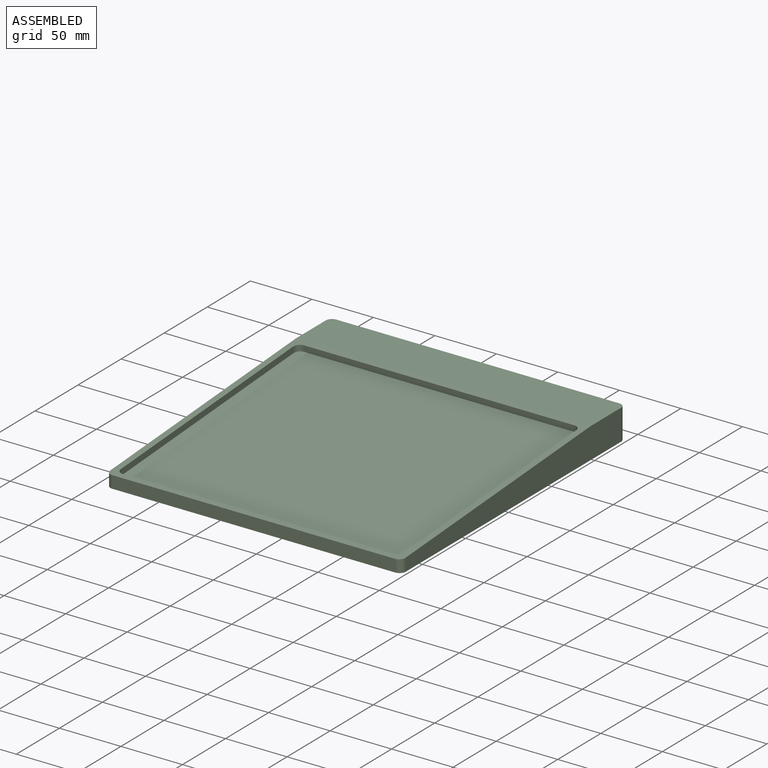
[diagram: assembled view]
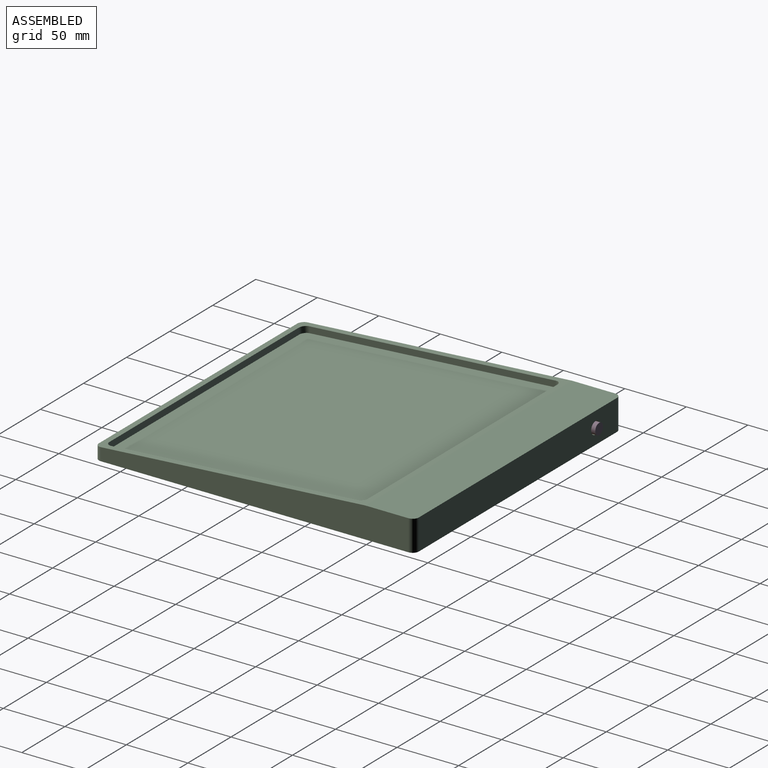
[diagram: assembled view, second angle]
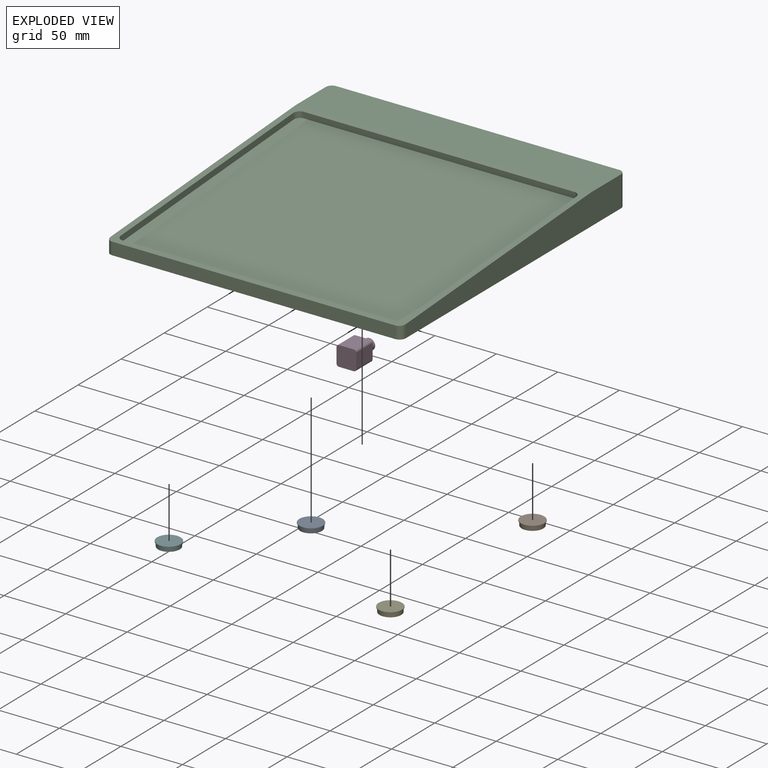
[diagram: exploded view]
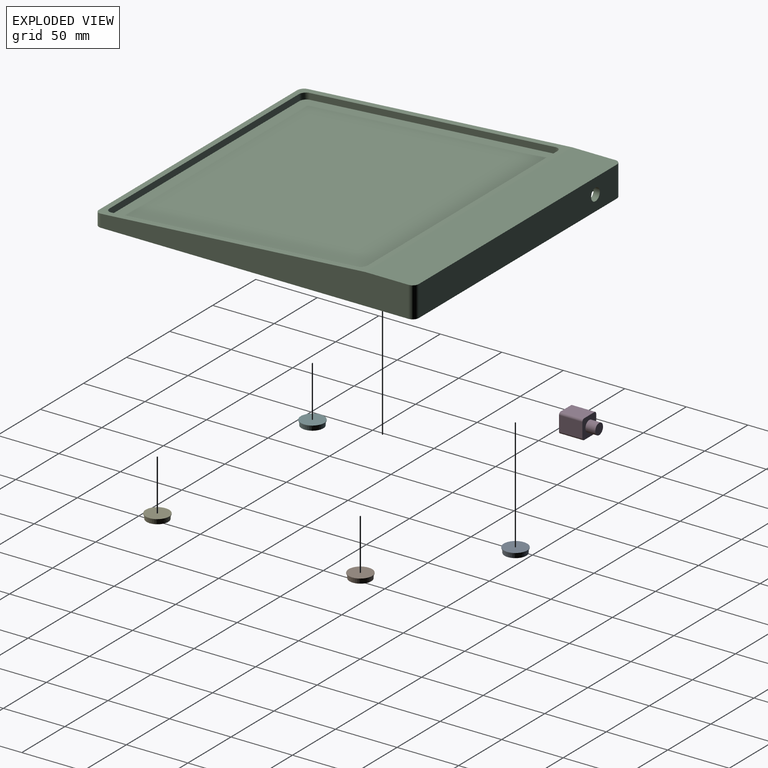
[diagram: exploded view, second angle]
ASSEMBLY  parts=6 mates=5
PART A: 5 faces, bbox 19x19x4.1 mm
  f0: cylinder r=9.5mm len=19mm, axis (0,0,-1), area 29.8mm2, adj f1,f2
  f1: plane 19x19mm, normal (0,0,1), area 30.5mm2, adj f0,f3
  f2: plane 19x19mm, normal (0,0,-1), area 283.5mm2, adj f0
  f3: cone r=9mm half-angle=3deg, axis (0,0,-1), area 201.1mm2, adj f1,f4
  f4: plane 17.57x17.57mm, normal (0,0,1), area 242.5mm2, adj f3
PART B: same geometry as A
PART C: 49 faces, bbox 240x260x25 mm
  f0: plane 52.5x30mm, normal (0,0,-1), area 1575mm2, adj f1,f2,f23,f31
  f1: plane 52.5x20mm, normal (0,-1,0), area 1050mm2, adj f0,f9,f23,f31
  f2: plane 52.5x20mm, normal (0,1,0), area 1050mm2, adj f0,f9,f23,f31
  f3: plane 55x30mm, normal (0,0,-1), area 1650mm2, adj f4,f5,f26,f29
  f4: plane 55x20mm, normal (0,-1,0), area 1100mm2, adj f3,f9,f26,f29
  f5: plane 55x20mm, normal (0,1,0), area 1100mm2, adj f3,f9,f26,f29
  f6: plane 55x30mm, normal (0,0,-1), area 1650mm2, adj f7,f8,f27,f30
  f7: plane 55x20mm, normal (0,-1,0), area 1100mm2, adj f6,f9,f27,f30
  f8: plane 55x20mm, normal (0,1,0), area 1100mm2, adj f6,f9,f27,f30
  f9: plane 260x240mm, normal (0,0,-1), area 54671.9mm2, adj f1,f2,f4,f5,f7,f8,f10,f11
  f10: plane 250x25mm, normal (-1,0,0), area 4674.1mm2, adj f9,f12,f15,f32,f33
  f11: plane 230x10mm, normal (0,-1,0), area 2300mm2, adj f9,f15,f33,f34
  f12: plane 240x40mm, normal (0,0,1), area 9589.3mm2, adj f10,f13,f14,f15,f32,f35
  f13: plane 230x25mm, normal (0,1,0), area 5671.5mm2, adj f9,f12,f32,f35,f48
  f14: plane 250x25mm, normal (1,0,0), area 4674.1mm2, adj f9,f12,f15,f34,f35
  f15: plane 240x220mm, normal (0,-0.07,1), area 4515.8mm2, adj f10,f11,f12,f14,f16,f17,f18,f19
  f16: plane 220x4.99mm, normal (0,-1,-0.07), area 1100mm2, adj f15,f20,f36,f39
  f17: plane 200.39x18.63mm, normal (1,0,0), area 1002.6mm2, adj f15,f20,f36,f37
  f18: plane 220x4.99mm, normal (0,1,0.07), area 1100mm2, adj f15,f20,f37,f38
  f19: plane 200.39x18.63mm, normal (-1,0,0), area 1002.6mm2, adj f15,f20,f38,f39
  f20: plane 230x210.02mm, normal (0,-0.07,1), area 48396mm2, adj f16,f17,f18,f19,f36,f37,f38,f39
  f21: plane 52.5x30mm, normal (0,0,-1), area 1575mm2, adj f22,f24,f25,f28
  f22: plane 52.5x20mm, normal (0,-1,0), area 971.5mm2, adj f9,f21,f25,f28,f48
  f23: plane 30x20mm, normal (-1,0,0), area 600mm2, adj f0,f1,f2,f9
  f24: plane 52.5x20mm, normal (0,1,0), area 1050mm2, adj f9,f21,f25,f28
  f25: plane 30x20mm, normal (1,0,0), area 600mm2, adj f9,f21,f22,f24
  f26: plane 30x20mm, normal (-1,0,0), area 600mm2, adj f3,f4,f5,f9
  f27: plane 30x20mm, normal (1,0,0), area 600mm2, adj f6,f7,f8,f9
  f28: plane 30x20mm, normal (-1,0,0), area 600mm2, adj f9,f21,f22,f24
  f29: plane 30x20mm, normal (1,0,0), area 600mm2, adj f3,f4,f5,f9
  f30: plane 30x20mm, normal (-1,0,0), area 600mm2, adj f6,f7,f8,f9
  f31: plane 30x20mm, normal (1,0,0), area 600mm2, adj f0,f1,f2,f9
  f32: cylinder r=5mm len=25mm, axis (0,0,1), area 196.3mm2, adj f9,f10,f12,f13
  f33: cylinder r=5mm len=10.34mm, axis (0,0,-1), area 79.5mm2, adj f9,f10,f11,f15
  f34: cylinder r=5mm len=10.34mm, axis (0,0,1), area 79.5mm2, adj f9,f11,f14,f15
  f35: cylinder r=5mm len=25mm, axis (0,0,-1), area 196.3mm2, adj f9,f12,f13,f14
  f36: cylinder r=5mm len=5.33mm, axis (0,0.07,-1), area 39.3mm2, adj f15,f16,f17,f20
  f37: cylinder r=5mm len=5.33mm, axis (0,0.07,-1), area 39.3mm2, adj f15,f17,f18,f20
  f38: cylinder r=5mm len=5.33mm, axis (0,0.07,-1), area 39.3mm2, adj f15,f18,f19,f20
  f39: cylinder r=5mm len=5.33mm, axis (0,0.07,-1), area 39.3mm2, adj f15,f16,f19,f20
  f40: cylinder r=10mm len=20mm, axis (0,0,-1), area 31.4mm2, adj f9,f41
  f41: plane 20x20mm, normal (0,0,-1), area 314.2mm2, adj f40
  f42: cylinder r=10mm len=20mm, axis (0,0,-1), area 31.4mm2, adj f9,f43
  f43: plane 20x20mm, normal (0,0,-1), area 314.2mm2, adj f42
  f44: cylinder r=10mm len=20mm, axis (0,0,-1), area 31.4mm2, adj f9,f45
  f45: plane 20x20mm, normal (0,0,-1), area 314.2mm2, adj f44
  f46: cylinder r=10mm len=20mm, axis (0,0,-1), area 31.4mm2, adj f9,f47
  f47: plane 20x20mm, normal (0,0,-1), area 314.2mm2, adj f46
  f48: cylinder r=5mm len=10mm, axis (0,1,0), area 157.1mm2, adj f13,f22
PART D: 12 faces, bbox 16x27x16 mm
  f0: plane 19x12mm, normal (-1,0,0), area 228mm2, adj f4,f5,f8,f11
  f1: plane 19x12mm, normal (0,0,-1), area 228mm2, adj f4,f5,f8,f9
  f2: plane 19x12mm, normal (1,0,0), area 228mm2, adj f4,f5,f9,f10
  f3: plane 19x12mm, normal (0,0,1), area 228mm2, adj f4,f5,f10,f11
  f4: plane 16x16mm, normal (0,-1,0), area 188.9mm2, adj f0,f1,f2,f3,f6,f8,f9,f10
  f5: plane 16x16mm, normal (0,1,0), area 252.6mm2, adj f0,f1,f2,f3,f8,f9,f10,f11
  f6: cylinder r=4.5mm len=9mm, axis (0,1,0), area 226.2mm2, adj f4,f7
  f7: plane 9x9mm, normal (0,-1,0), area 63.6mm2, adj f6
  f8: cylinder r=2mm len=19mm, axis (0,-1,0), area 59.7mm2, adj f0,f1,f4,f5
  f9: cylinder r=2mm len=19mm, axis (0,1,0), area 59.7mm2, adj f1,f2,f4,f5
  f10: cylinder r=2mm len=19mm, axis (0,-1,0), area 59.7mm2, adj f2,f3,f4,f5
  f11: cylinder r=2mm len=19mm, axis (0,1,0), area 59.7mm2, adj f0,f3,f4,f5
PART E: same geometry as A
PART F: same geometry as A
PLACE A rot(axis=(1,0,0),180deg) t=(-137.17,45.2,-41.13)mm
PLACE B rot(axis=(1,0,0),180deg) t=(42.83,45.2,-41.13)mm
PLACE C t=(-167.17,110.2,-41.63)mm
PLACE D rot(axis=(0,0,1),180deg) t=(-129.17,86.2,-37.13)mm
PLACE E rot(axis=(1,0,0),180deg) t=(42.83,-119.8,-41.63)mm
PLACE F rot(axis=(1,0,0),180deg) t=(-137.17,-119.8,-41.63)mm
MATE cylindrical E.f0 <-> C.f42  axis (0,0,1) through (42.83,-119.8,-41.63)mm
MATE cylindrical B.f0 <-> C.f44  axis (0,0,1) through (42.83,45.2,-41.13)mm
MATE cylindrical F.f0 <-> C.f40  axis (0,0,1) through (-137.17,-119.8,-41.63)mm
MATE cylindrical A.f0 <-> C.f46  axis (0,0,1) through (-137.17,45.2,-41.13)mm
MATE planar C.f22 <-> D.f4  axis (0,-1,0) through (-135.82,105.2,-31.83)mm
